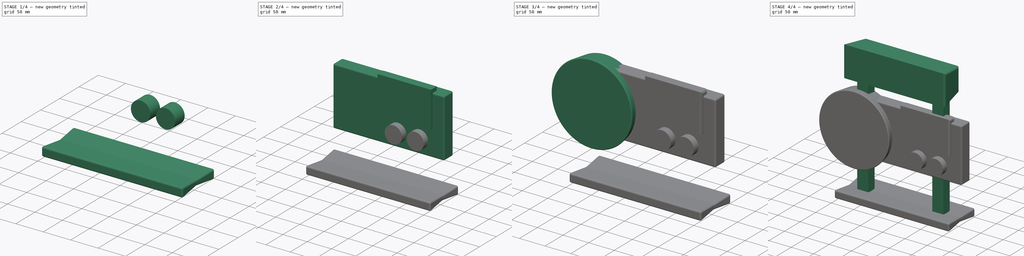
[diagram: build sequence overview — one tinted view per stage of 4, left to right]
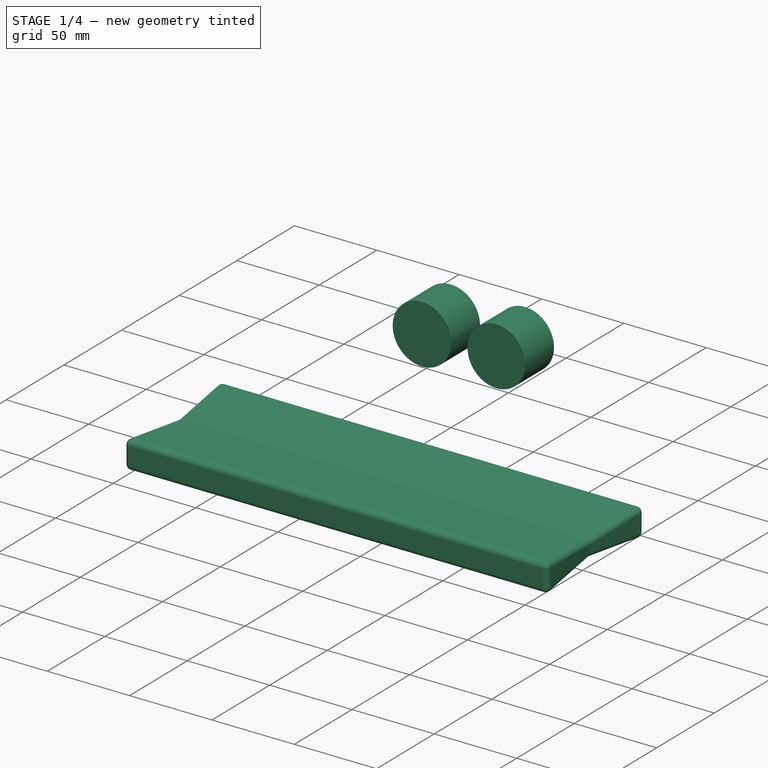
[diagram: stage 1 of 4 — iso view after this stage's code; geometry added in this stage tinted green]
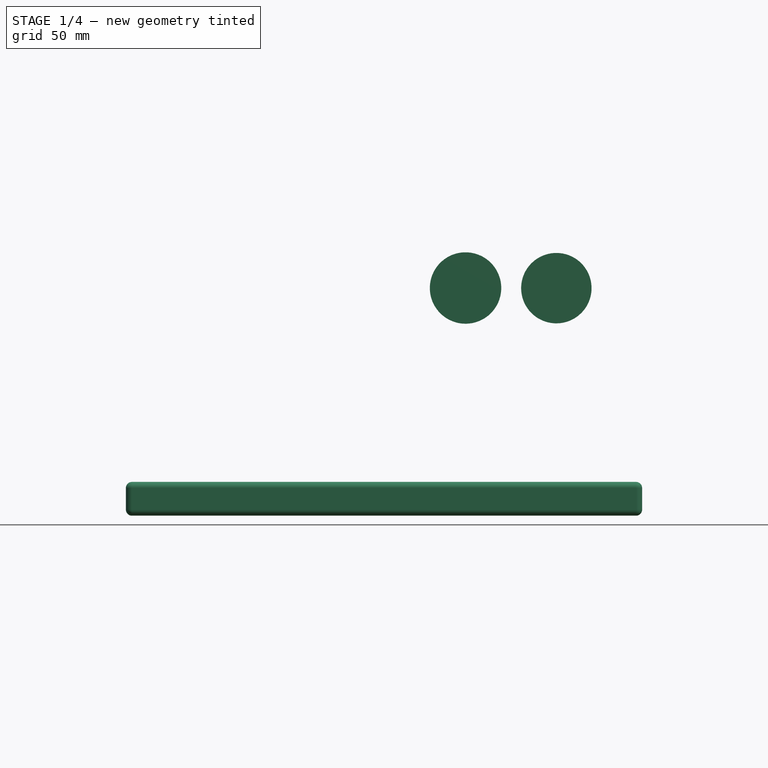
[diagram: stage 1 of 4 — front view after this stage's code; geometry added in this stage tinted green]
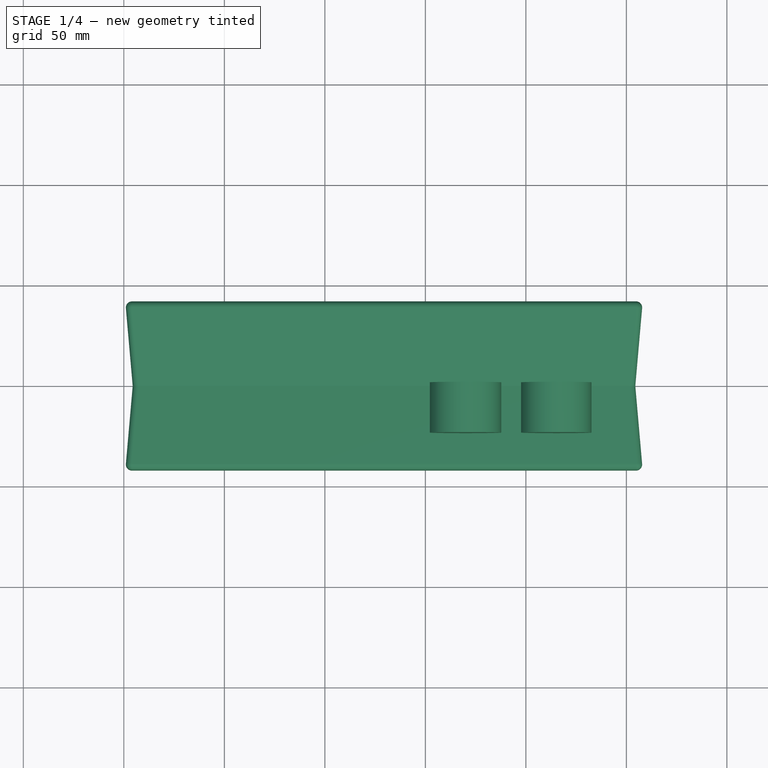
[diagram: stage 1 of 4 — top view after this stage's code; geometry added in this stage tinted green]
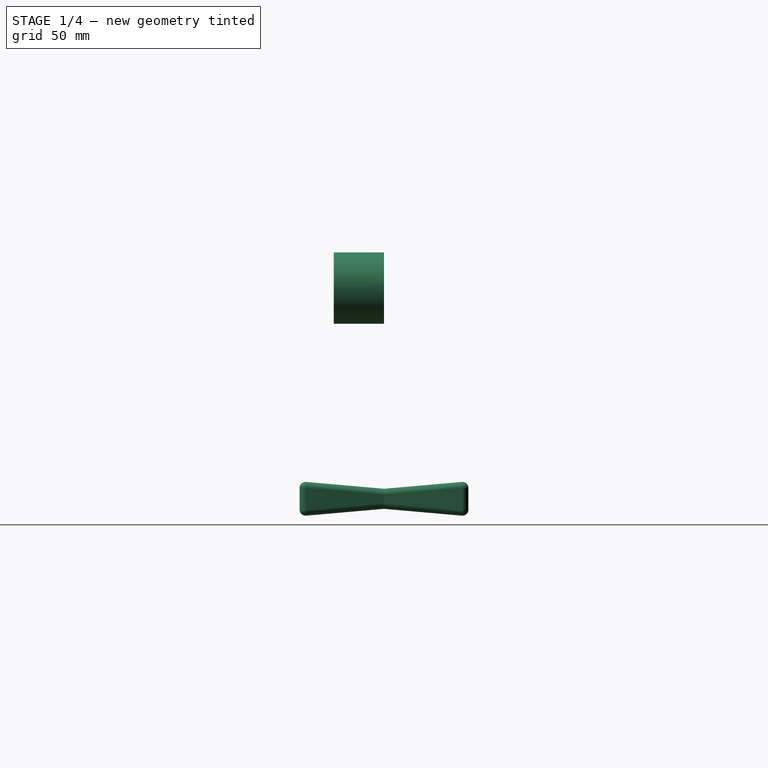
[diagram: stage 1 of 4 — right view after this stage's code; geometry added in this stage tinted green]
FCSTD DOCUMENT  (FreeCAD 0.21R33771 (Git))
Label: final final final premerge
License: All rights reserved
LicenseURL: https://en.wikipedia.org/wiki/All_rights_reserved
objects: Sketcher::SketchObject×9, PartDesign::Pad×9, PartDesign::Body×9, PartDesign::Fillet×5
note: 46 computed .brp shape members not serialized (recipe doc carries the construction recipe); baked Part::Feature solids carry a one-line shape summary decoded from their .brp

FEATURE [Sketcher::SketchObject] Sketch
  FullyConstrained = false
  MapMode = 5
  Placement = pos=(0,0,0) rot=(1,0,0;1.5708rad)
  Support = -> [XZ_Plane]
  sketch-geometry (4):
    g0: LineSegment StartX=-95.5779 StartY=-79.7773 StartZ=0 EndX=154.422 EndY=-79.7773 EndZ=0
    g1: LineSegment StartX=154.422 StartY=-79.7773 StartZ=0 EndX=154.422 EndY=-89.7773 EndZ=0
    g2: LineSegment StartX=154.422 StartY=-89.7773 StartZ=0 EndX=-95.5779 EndY=-89.7773 EndZ=0
    g3: LineSegment StartX=-95.5779 StartY=-89.7773 StartZ=0 EndX=-95.5779 EndY=-79.7773 EndZ=0
  constraints (10):
    c: Coincident(g0,g1)
    c: Coincident(g1,g2)
    c: Coincident(g2,g3)
    c: Coincident(g3,g0)
    c: Horizontal(g0)
    c: Horizontal(g2)
    c: Vertical(g1)
    c: Vertical(g3)
    c: DistanceY(g1,g1) = 10
    c: DistanceX(g0,g0) = 250
FEATURE [PartDesign::Pad] Pad  label="Bottom Rocker"
  Direction = (0,-1,-2e-16)
  Length = 42
  Length2 = 42
  Placement = pos=(0,0,0) rot=(1,0,0;1.5708rad)
  Profile = -> Sketch
  ReferenceAxis = -> Sketch [N_Axis]
  TaperAngle = 5
  TaperAngle2 = 5
  Type = 4
FEATURE [PartDesign::Body] Body004  label="Right square"
  Group = -> [Sketch004,Pad004,Fillet003]
  Origin = -> Origin004
  Tip = -> Fillet003
FEATURE [PartDesign::Fillet] Fillet004
  Base = -> Pad [Edge1,Edge2,Edge3,Edge4,Edge5,Edge6,Edge7,Edge8,Edge9,Edge10,Edge11,Edge12,Edge13,Edge14,Edge15,Edge16,Edge17,Edge18,Edge19,Edge20]
  BaseFeature = -> Pad
  Placement = pos=(0,0,0) rot=(1,0,0;1.5708rad)
  Radius = 3
  SupportTransform = false
  UseAllEdges = true
FEATURE [PartDesign::Body] Body  label="Bottom Rocker001"
  Group = -> [Sketch,Pad,Fillet004]
  Origin = -> Origin
  Tip = -> Fillet004
FEATURE [Sketcher::SketchObject] Sketch008
  FullyConstrained = false
  MapMode = 5
  Placement = pos=(0,0,0) rot=(1,0,0;1.5708rad)
  Support = -> [XZ_Plane007]
  sketch-geometry (1):
    g0: Circle CenterX=69.9827 CenterY=20.0745 CenterZ=0 NormalX=0 NormalY=0 NormalZ=1 AngleXU=0 Radius=17.7625
FEATURE [Sketcher::SketchObject] Sketch009
  FullyConstrained = false
  MapMode = 5
  Placement = pos=(0,0,0) rot=(1,0,0;1.5708rad)
  Support = -> [XZ_Plane008]
  sketch-geometry (1):
    g0: Circle CenterX=115.157 CenterY=20.0073 CenterZ=0 NormalX=0 NormalY=0 NormalZ=1 AngleXU=0 Radius=17.513
FEATURE [PartDesign::Pad] Pad007
  Direction = (0,-1,-2e-16)
  Length = 25
  Length2 = 10
  Placement = pos=(0,0,0) rot=(1,0,0;1.5708rad)
  Profile = -> Sketch008
  ReferenceAxis = -> Sketch008 [N_Axis]
  Type = 0
FEATURE [PartDesign::Body] Body007  label="Vol 1"
  Group = -> [Sketch008,Pad007]
  Origin = -> Origin007
  Tip = -> Pad007
FEATURE [PartDesign::Pad] Pad008
  Direction = (0,-1,-2e-16)
  Length = 25
  Length2 = 10
  Placement = pos=(0,0,0) rot=(1,0,0;1.5708rad)
  Profile = -> Sketch009
  ReferenceAxis = -> Sketch009 [N_Axis]
  Type = 0
FEATURE [PartDesign::Body] Body008  label="Vol 2"
  Group = -> [Sketch009,Pad008]
  Origin = -> Origin008
  Tip = -> Pad008
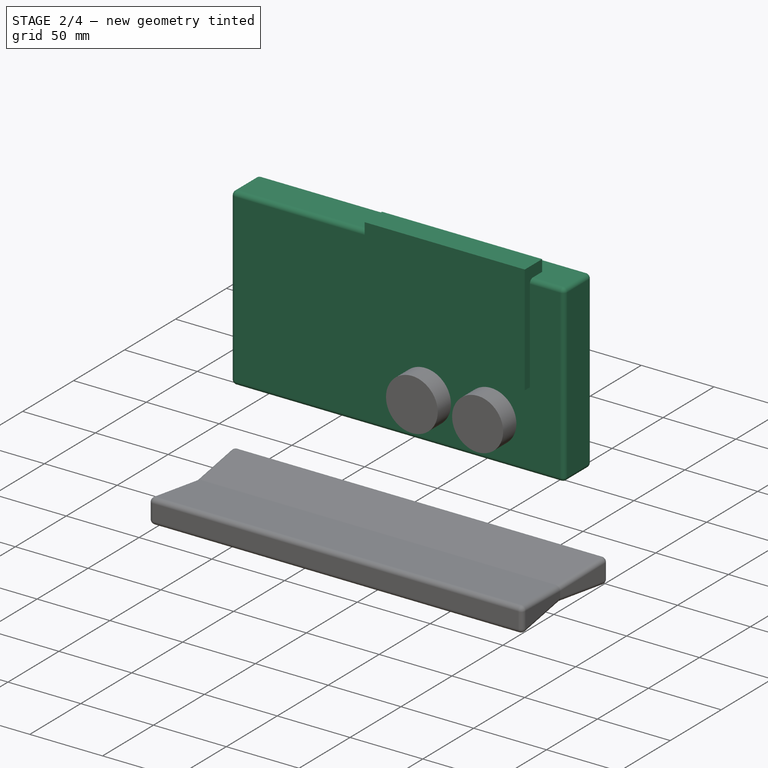
[diagram: stage 2 of 4 — iso view after this stage's code; geometry added in this stage tinted green]
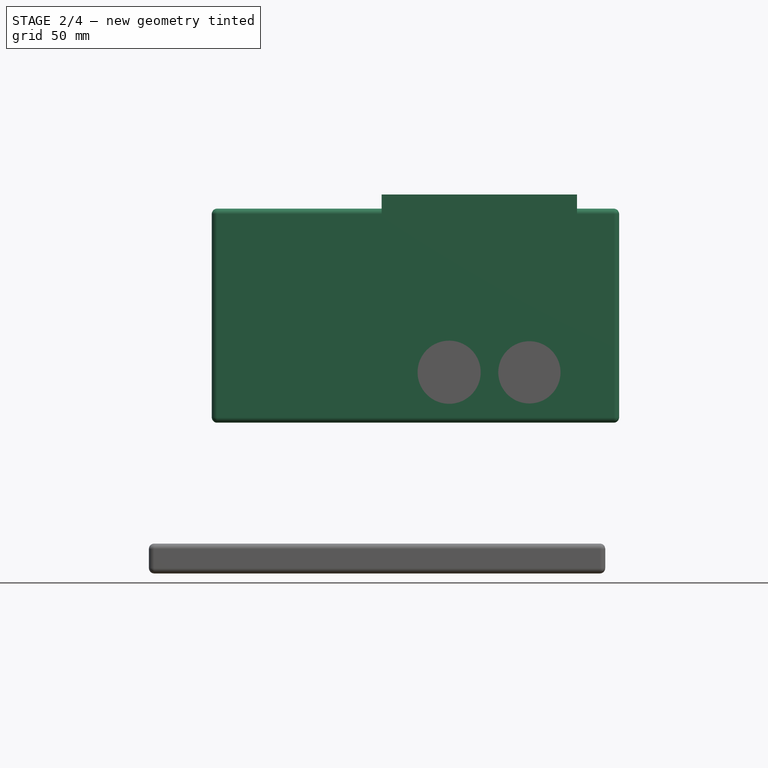
[diagram: stage 2 of 4 — front view after this stage's code; geometry added in this stage tinted green]
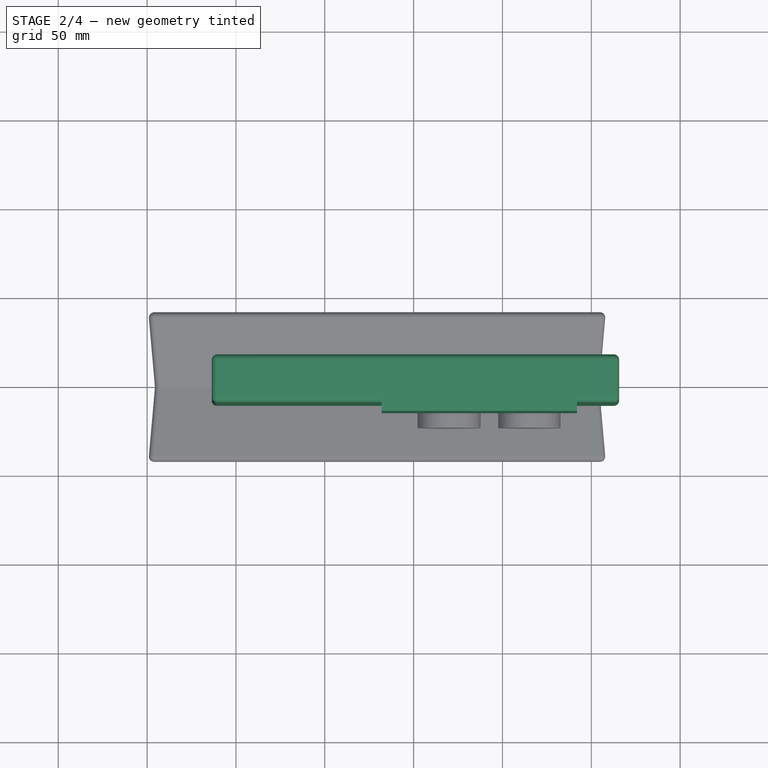
[diagram: stage 2 of 4 — top view after this stage's code; geometry added in this stage tinted green]
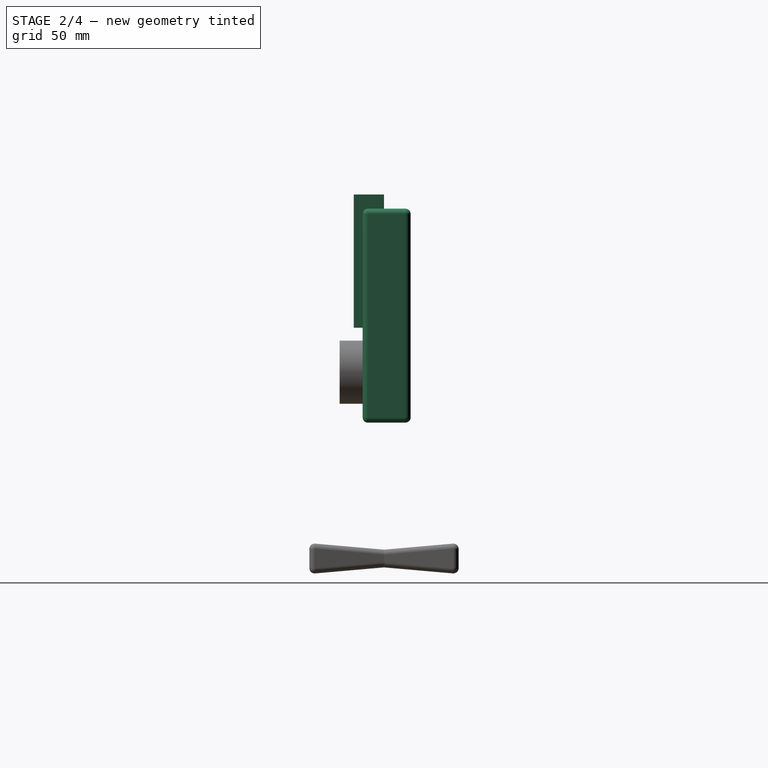
[diagram: stage 2 of 4 — right view after this stage's code; geometry added in this stage tinted green]
FEATURE [Sketcher::SketchObject] Sketch004
  FullyConstrained = false
  MapMode = 5
  Placement = pos=(0,0,0) rot=(1,0,0;1.5708rad)
  Support = -> [XZ_Plane004]
  sketch-geometry (4):
    g0: LineSegment StartX=165.633 StartY=112.14 StartZ=0 EndX=-63.5992 EndY=112.14 EndZ=0
    g1: LineSegment StartX=-63.5992 StartY=112.14 StartZ=0 EndX=-63.5992 EndY=-8.30742 EndZ=0
    g2: LineSegment StartX=-63.5992 StartY=-8.30742 StartZ=0 EndX=165.633 EndY=-8.30742 EndZ=0
    g3: LineSegment StartX=165.633 StartY=-8.30742 StartZ=0 EndX=165.633 EndY=112.14 EndZ=0
  constraints (8):
    c: Coincident(g0,g1)
    c: Coincident(g1,g2)
    c: Coincident(g2,g3)
    c: Coincident(g3,g0)
    c: Horizontal(g0)
    c: Horizontal(g2)
    c: Vertical(g1)
    c: Vertical(g3)
FEATURE [PartDesign::Pad] Pad004
  Direction = (0,-1,-2e-16)
  Length = 12
  Length2 = 15
  Placement = pos=(0,0,0) rot=(1,0,0;1.5708rad)
  Profile = -> Sketch004
  ReferenceAxis = -> Sketch004 [N_Axis]
  Type = 4
FEATURE [Sketcher::SketchObject] Sketch006
  FullyConstrained = false
  MapMode = 5
  Placement = pos=(0,0,0) rot=(1,0,0;1.5708rad)
  Support = -> [XZ_Plane005]
  sketch-geometry (4):
    g0: LineSegment StartX=31.9613 StartY=120.071 StartZ=0 EndX=141.961 EndY=120.071 EndZ=0
    g1: LineSegment StartX=141.961 StartY=120.071 StartZ=0 EndX=141.961 EndY=45.0711 EndZ=0
    g2: LineSegment StartX=141.961 StartY=45.0711 StartZ=0 EndX=31.9613 EndY=45.0711 EndZ=0
    g3: LineSegment StartX=31.9613 StartY=45.0711 StartZ=0 EndX=31.9613 EndY=120.071 EndZ=0
  constraints (10):
    c: Coincident(g0,g1)
    c: Coincident(g1,g2)
    c: Coincident(g2,g3)
    c: Coincident(g3,g0)
    c: Horizontal(g0)
    c: Horizontal(g2)
    c: Vertical(g1)
    c: Vertical(g3)
    c: DistanceX(g0,g0) = 110
    c: DistanceY(g1,g1) = 75
FEATURE [PartDesign::Pad] Pad005
  Direction = (0,-1,-2e-16)
  Length = 17
  Length2 = 10
  Placement = pos=(0,0,0) rot=(1,0,0;1.5708rad)
  Profile = -> Sketch006
  ReferenceAxis = -> Sketch006 [N_Axis]
  Type = 0
FEATURE [PartDesign::Body] Body005  label="Small TV right"
  Group = -> [Sketch006,Pad005,Fillet002]
  Origin = -> Origin005
  Tip = -> Fillet002
FEATURE [PartDesign::Fillet] Fillet003
  Base = -> Pad004 [Edge1,Edge2,Edge3,Edge4,Edge5,Edge6,Edge7,Edge8,Edge9,Edge10,Edge11,Edge12]
  BaseFeature = -> Pad004
  Placement = pos=(0,0,0) rot=(1,0,0;1.5708rad)
  Radius = 3
  SupportTransform = false
  UseAllEdges = true
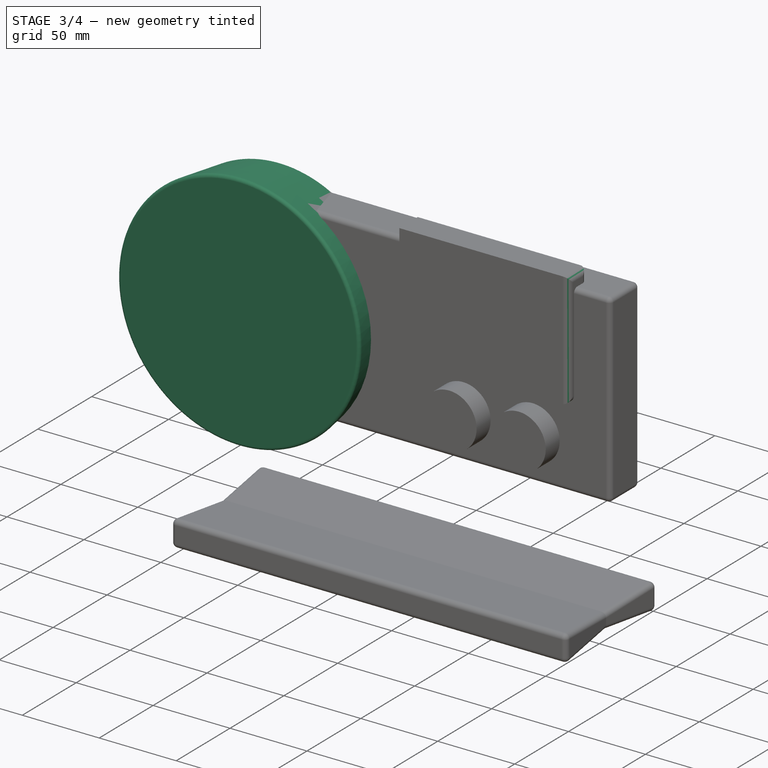
[diagram: stage 3 of 4 — iso view after this stage's code; geometry added in this stage tinted green]
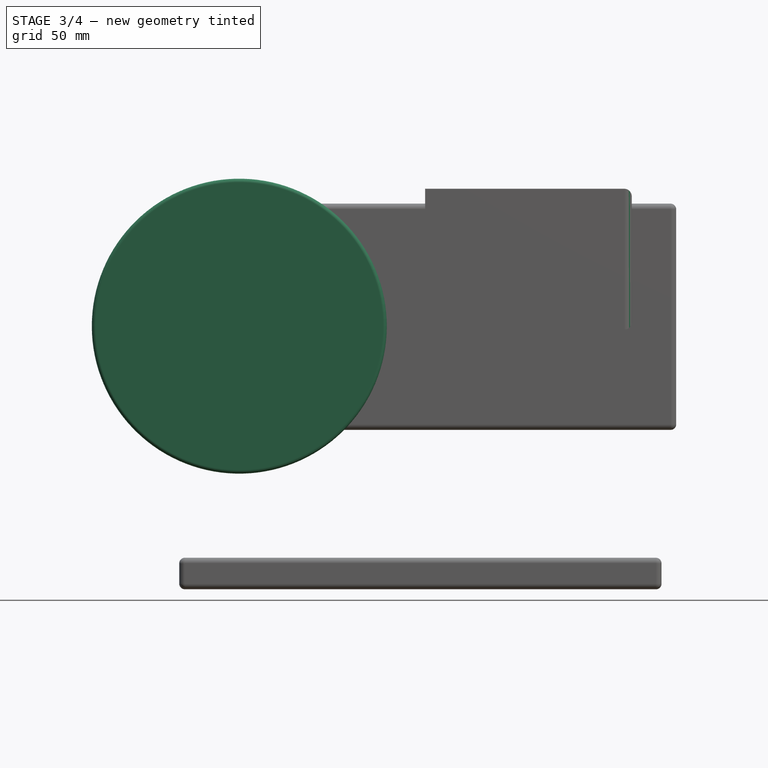
[diagram: stage 3 of 4 — front view after this stage's code; geometry added in this stage tinted green]
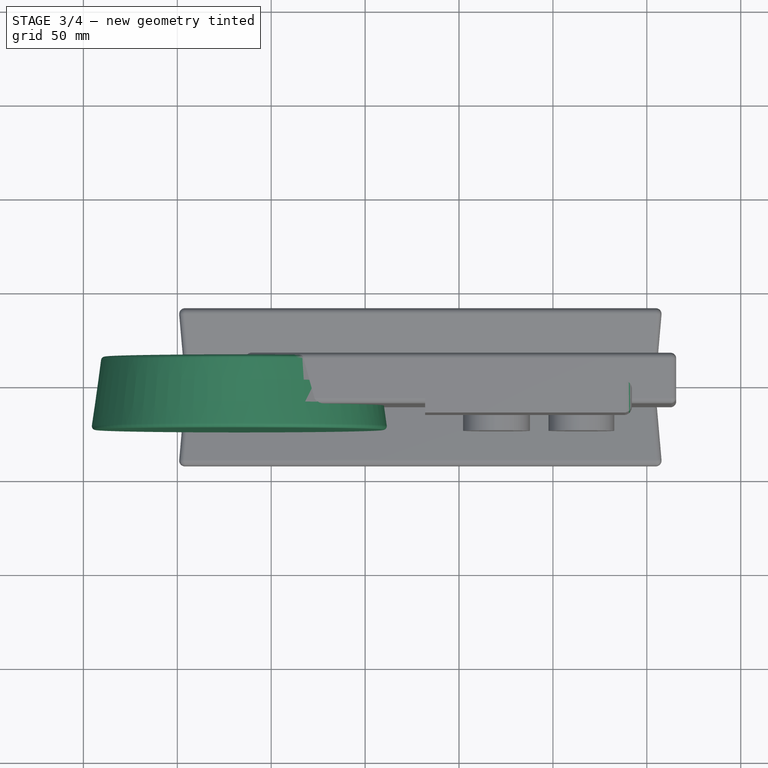
[diagram: stage 3 of 4 — top view after this stage's code; geometry added in this stage tinted green]
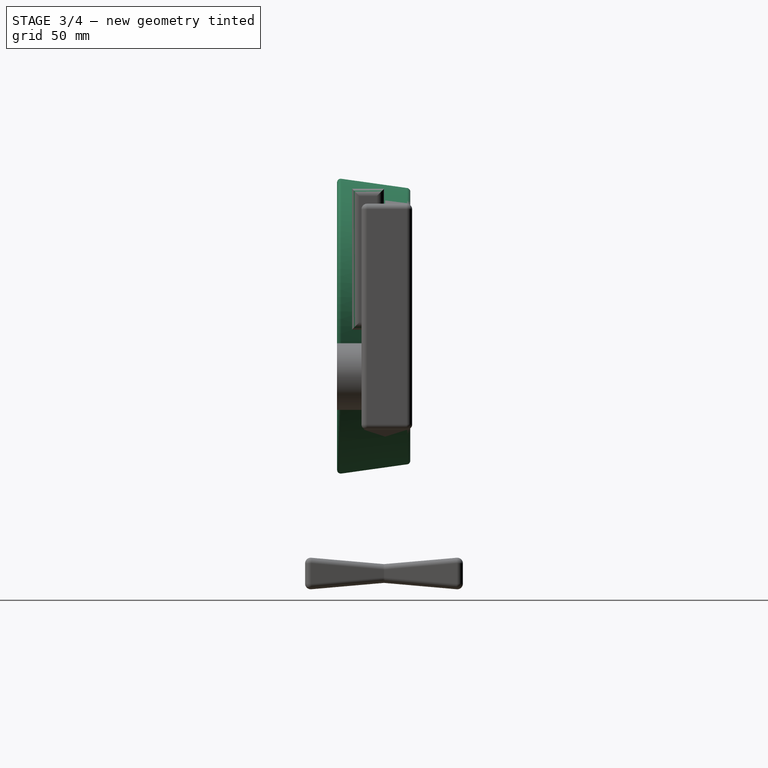
[diagram: stage 3 of 4 — right view after this stage's code; geometry added in this stage tinted green]
FEATURE [Sketcher::SketchObject] Sketch003
  FullyConstrained = false
  MapMode = 5
  Placement = pos=(0,0,0) rot=(1,0,0;1.5708rad)
  Support = -> [XZ_Plane003]
  sketch-geometry (1):
    g0: Circle CenterX=-66.9922 CenterY=46.916 CenterZ=0 NormalX=0 NormalY=0 NormalZ=1 AngleXU=0 Radius=75.3118
FEATURE [PartDesign::Pad] Pad003
  Direction = (0,-1,-2e-16)
  Length = 25
  Length2 = 14
  Placement = pos=(0,0,0) rot=(1,0,0;1.5708rad)
  Profile = -> Sketch003
  ReferenceAxis = -> Sketch003 [N_Axis]
  TaperAngle = 8
  TaperAngle2 = -8
  Type = 4
FEATURE [PartDesign::Body] Body002  label="TOP"
  Group = -> [Sketch002,Pad002,Fillet]
  Origin = -> Origin002
  Tip = -> Fillet
FEATURE [PartDesign::Fillet] Fillet001
  Base = -> Pad003 [Edge1,Edge2,Edge3]
  BaseFeature = -> Pad003
  Placement = pos=(0,0,0) rot=(1,0,0;1.5708rad)
  Radius = 2
  SupportTransform = false
  UseAllEdges = true
FEATURE [PartDesign::Body] Body003  label="Circle Screen"
  Group = -> [Sketch003,Pad003,Fillet001]
  Origin = -> Origin003
  Tip = -> Fillet001
FEATURE [PartDesign::Fillet] Fillet002
  Base = -> Pad005 [Face2]
  BaseFeature = -> Pad005
  Placement = pos=(0,0,0) rot=(1,0,0;1.5708rad)
  Radius = 4
  SupportTransform = false
  UseAllEdges = false
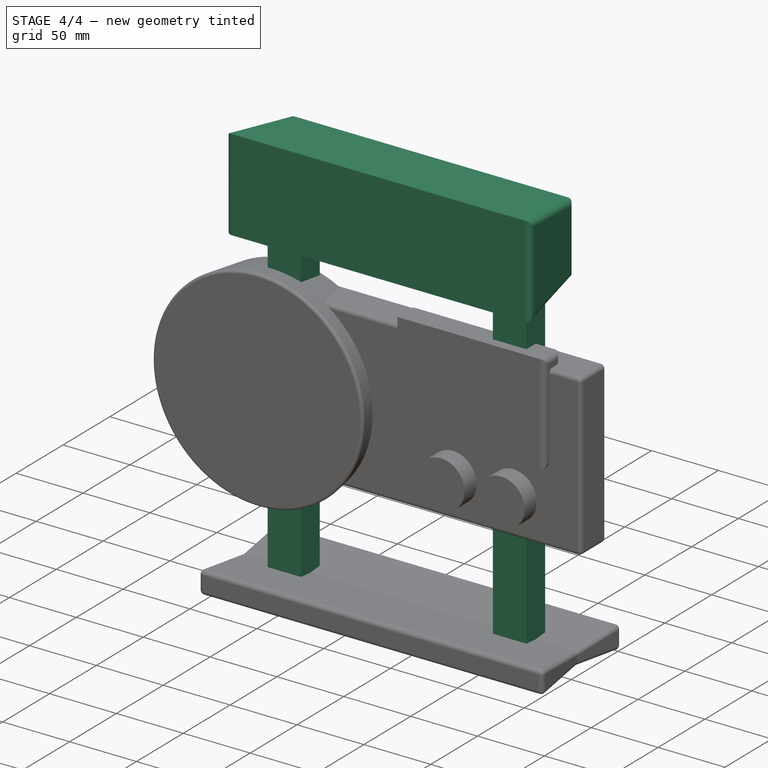
[diagram: stage 4 of 4 — iso view after this stage's code; geometry added in this stage tinted green]
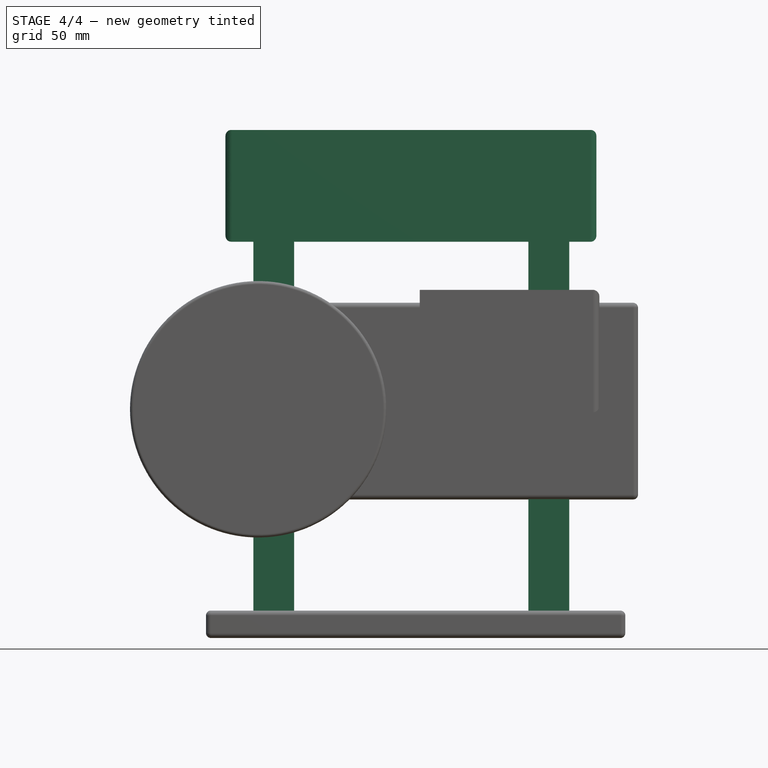
[diagram: stage 4 of 4 — front view after this stage's code; geometry added in this stage tinted green]
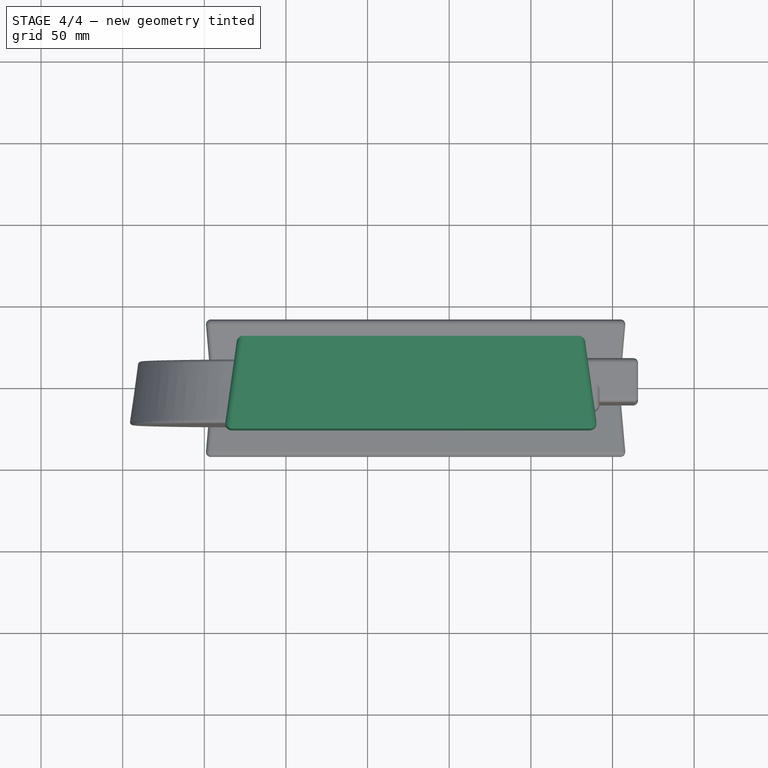
[diagram: stage 4 of 4 — top view after this stage's code; geometry added in this stage tinted green]
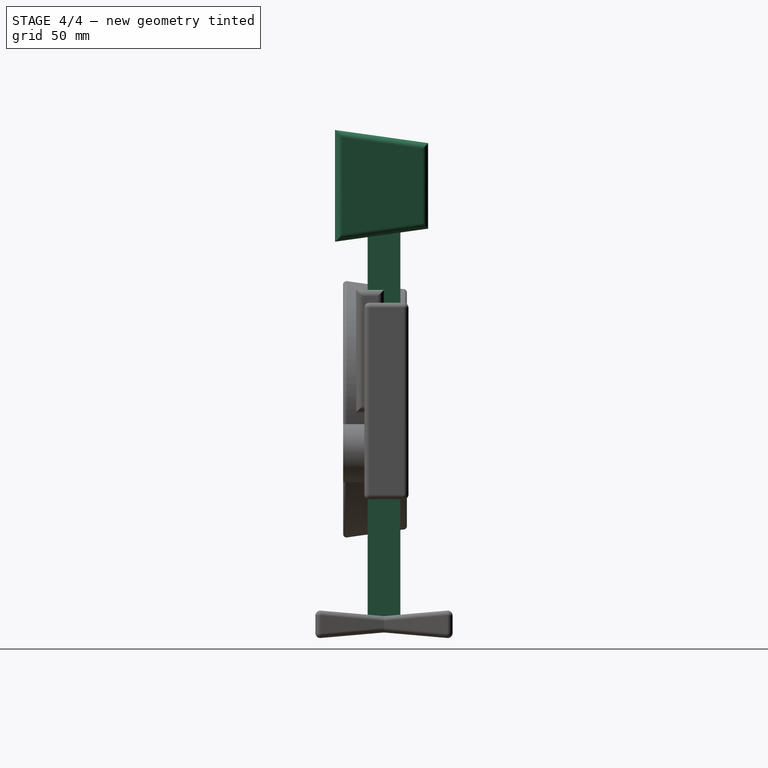
[diagram: stage 4 of 4 — right view after this stage's code; geometry added in this stage tinted green]
FEATURE [Sketcher::SketchObject] Sketch001
  FullyConstrained = false
  MapMode = 5
  Placement = pos=(0,0,0) rot=(1,0,0;1.5708rad)
  Support = -> [XZ_Plane001]
  sketch-geometry (4):
    g0: LineSegment StartX=-69.9766 StartY=164.374 StartZ=0 EndX=-44.9766 EndY=164.374 EndZ=0
    g1: LineSegment StartX=-44.9766 StartY=164.374 StartZ=0 EndX=-44.9766 EndY=-85.6263 EndZ=0
    g2: LineSegment StartX=-44.9766 StartY=-85.6263 StartZ=0 EndX=-69.9766 EndY=-85.6263 EndZ=0
    g3: LineSegment StartX=-69.9766 StartY=-85.6263 StartZ=0 EndX=-69.9766 EndY=164.374 EndZ=0
  constraints (10):
    c: Coincident(g0,g1)
    c: Coincident(g1,g2)
    c: Coincident(g2,g3)
    c: Coincident(g3,g0)
    c: Horizontal(g0)
    c: Horizontal(g2)
    c: Vertical(g1)
    c: Vertical(g3)
    c: DistanceY(g3,g3) = 250
    c: DistanceX(g0,g0) = 25
FEATURE [PartDesign::Pad] Pad001
  Direction = (0,-1,-2e-16)
  Length = 10
  Length2 = 10
  Placement = pos=(0,0,0) rot=(1,0,0;1.5708rad)
  Profile = -> Sketch001
  ReferenceAxis = -> Sketch001 [N_Axis]
  Type = 4
FEATURE [PartDesign::Body] Body001  label="Left Stand"
  Group = -> [Sketch001,Pad001]
  Origin = -> Origin001
  Tip = -> Pad001
FEATURE [Sketcher::SketchObject] Sketch002
  FullyConstrained = false
  MapMode = 5
  Placement = pos=(0,0,0) rot=(1,0,0;1.5708rad)
  Support = -> [XZ_Plane002]
  sketch-geometry (4):
    g0: LineSegment StartX=-83.4552 StartY=213.772 StartZ=0 EndX=136.545 EndY=213.772 EndZ=0
    g1: LineSegment StartX=136.545 StartY=213.772 StartZ=0 EndX=136.545 EndY=153.772 EndZ=0
    g2: LineSegment StartX=136.545 StartY=153.772 StartZ=0 EndX=-83.4552 EndY=153.772 EndZ=0
    g3: LineSegment StartX=-83.4552 StartY=153.772 StartZ=0 EndX=-83.4552 EndY=213.772 EndZ=0
  constraints (10):
    c: Coincident(g0,g1)
    c: Coincident(g1,g2)
    c: Coincident(g2,g3)
    c: Coincident(g3,g0)
    c: Horizontal(g0)
    c: Horizontal(g2)
    c: Vertical(g1)
    c: Vertical(g3)
    c: DistanceY(g3,g3) = 60
    c: DistanceX(g0,g0) = 220
FEATURE [PartDesign::Pad] Pad002
  Direction = (0,-1,-2e-16)
  Length = 30
  Length2 = 27
  Placement = pos=(0,0,0) rot=(1,0,0;1.5708rad)
  Profile = -> Sketch002
  ReferenceAxis = -> Sketch002 [N_Axis]
  TaperAngle = 8
  TaperAngle2 = -8
  Type = 4
FEATURE [Sketcher::SketchObject] Sketch007
  FullyConstrained = false
  MapMode = 5
  Placement = pos=(0,0,0) rot=(1,0,0;1.5708rad)
  Support = -> [XZ_Plane006]
  sketch-geometry (4):
    g0: LineSegment StartX=98.4885 StartY=194.398 StartZ=0 EndX=123.489 EndY=194.398 EndZ=0
    g1: LineSegment StartX=123.489 StartY=194.398 StartZ=0 EndX=123.489 EndY=-80.6024 EndZ=0
    g2: LineSegment StartX=123.489 StartY=-80.6024 StartZ=0 EndX=98.4885 EndY=-80.6024 EndZ=0
    g3: LineSegment StartX=98.4885 StartY=-80.6024 StartZ=0 EndX=98.4885 EndY=194.398 EndZ=0
  constraints (10):
    c: Coincident(g0,g1)
    c: Coincident(g1,g2)
    c: Coincident(g2,g3)
    c: Coincident(g3,g0)
    c: Horizontal(g0)
    c: Horizontal(g2)
    c: Vertical(g1)
    c: Vertical(g3)
    c: DistanceX(g0,g0) = 25
    c: DistanceY(g1,g1) = 275
FEATURE [PartDesign::Pad] Pad006
  Direction = (0,-1,0)
  Length = 10
  Length2 = 10
  Placement = pos=(0,0,0) rot=(1,0,0;1.5708rad)
  Profile = -> Sketch007
  ReferenceAxis = -> Sketch007 [N_Axis]
  Type = 4
  UseCustomVector = true
FEATURE [PartDesign::Body] Body006  label="RIGHT STAND"
  Group = -> [Sketch007,Pad006]
  Origin = -> Origin006
  Tip = -> Pad006
FEATURE [PartDesign::Fillet] Fillet
  Base = -> Pad002 [Face2,Face4]
  BaseFeature = -> Pad002
  Placement = pos=(0,0,0) rot=(1,0,0;1.5708rad)
  Radius = 4
  SupportTransform = false
  UseAllEdges = false
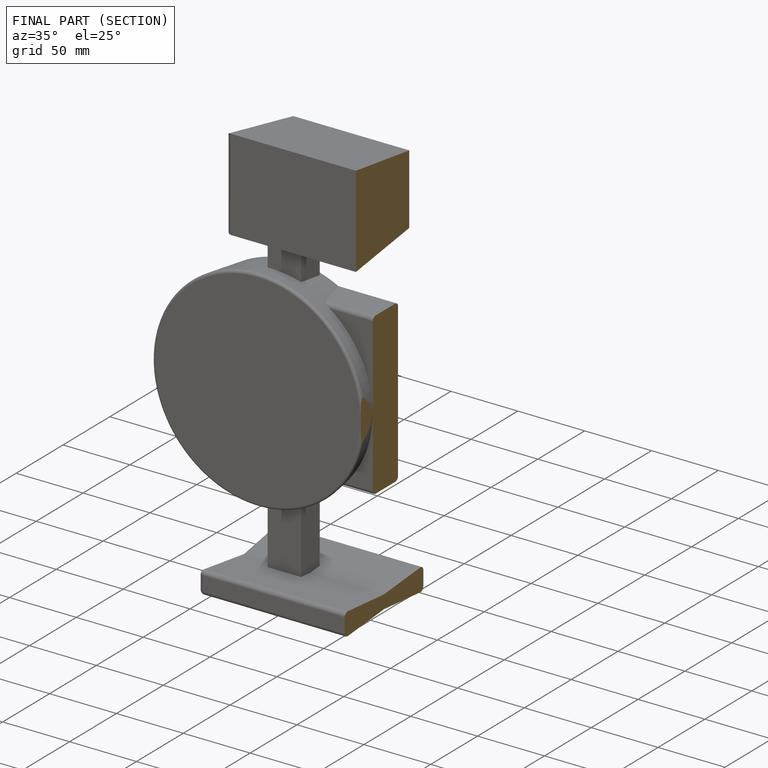
[diagram: finished part — half-section view (interior)]
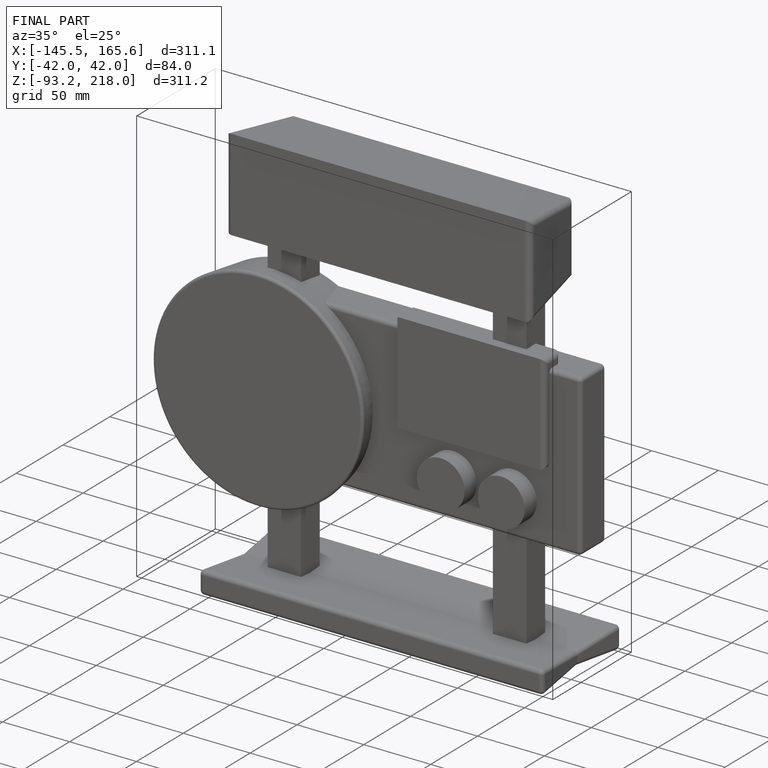
[diagram: finished part — iso view with bounding-box wireframe]
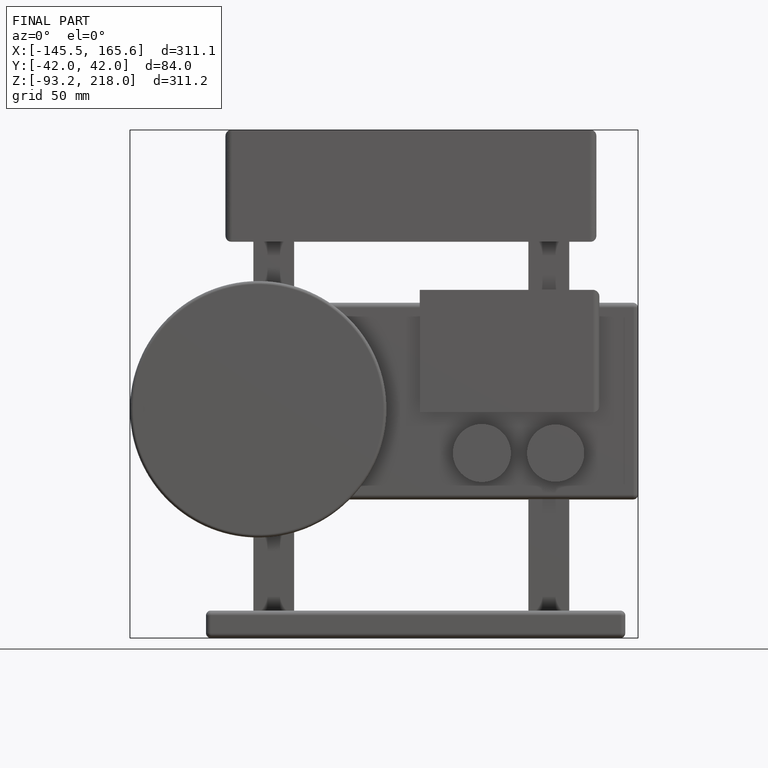
[diagram: finished part — front view with bounding-box wireframe]
